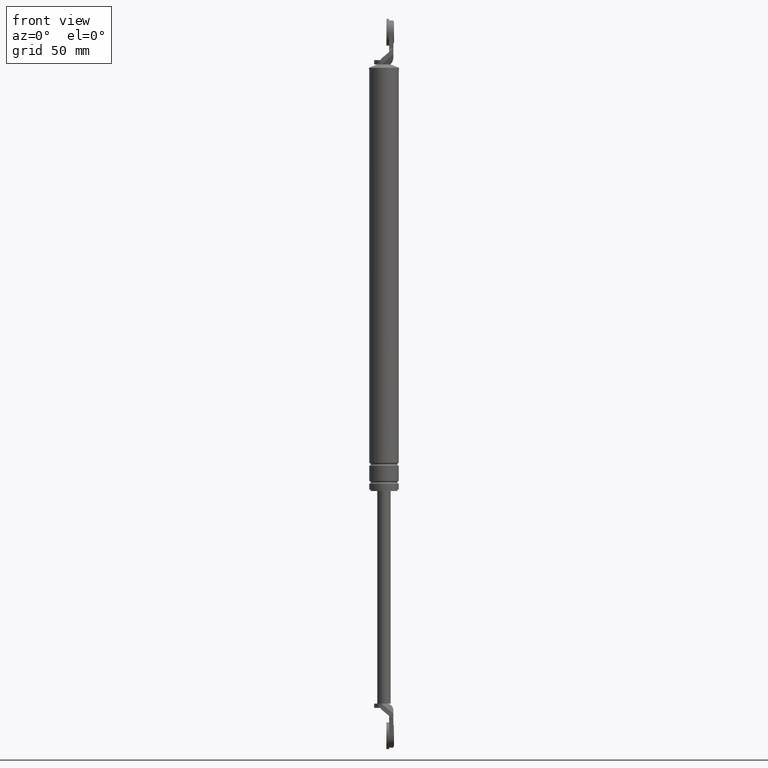
[diagram: clean part render]
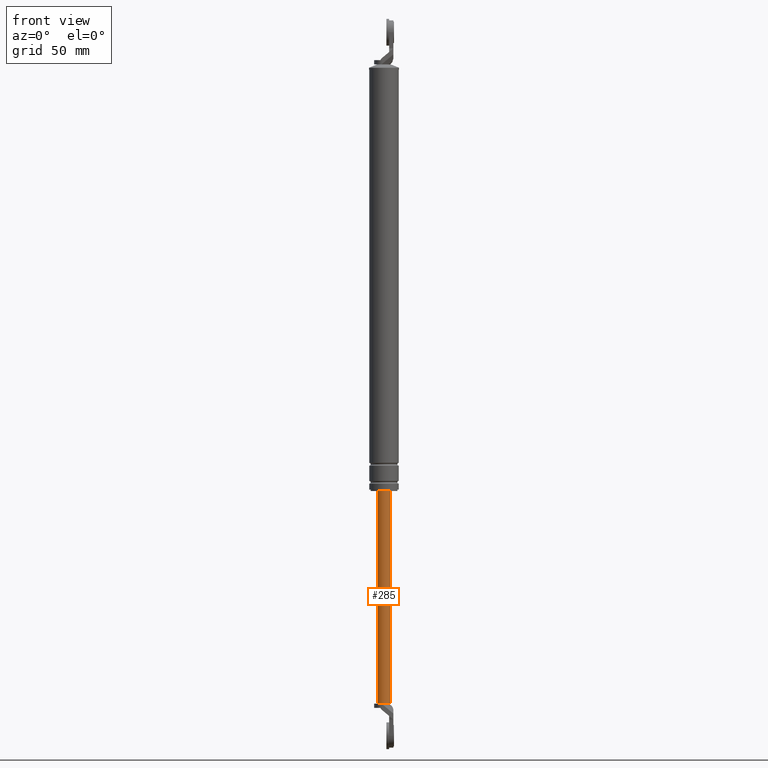
[diagram: same view with one face highlighted and labeled with its STEP entity id]
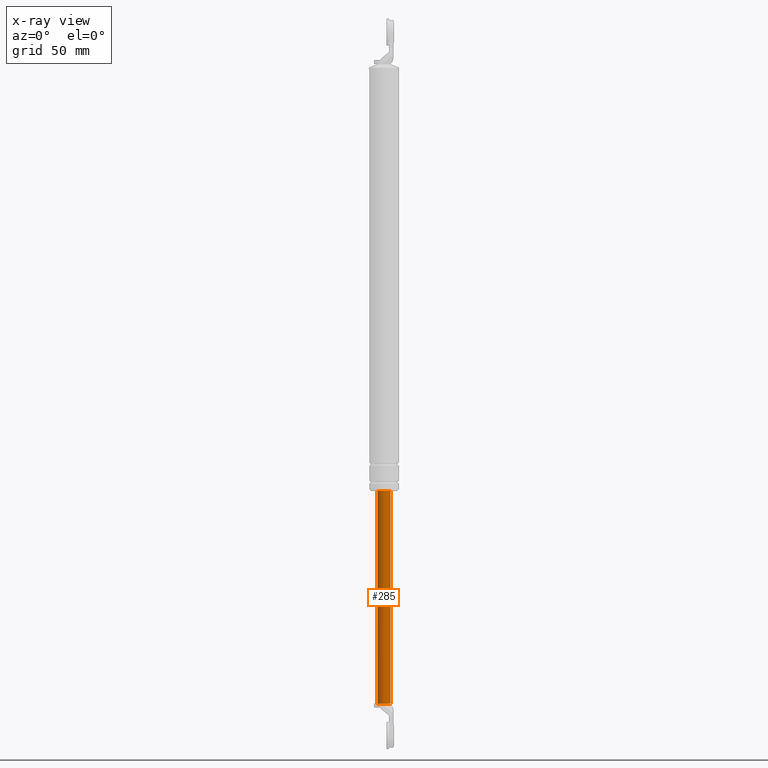
[diagram: x-ray of the same camera — body ghosted, the highlighted face saturated]
A machine part, front view. The second image highlights one B-rep face of the part: STEP entity #285.
The next image is the same camera in x-ray: the body ghosted, the highlighted face saturated — about 0% of this face is hidden behind the body in this view.
In plain terms, the highlighted cylindrical surface (edge-blend (fillet) strip) has radius 5 mm, axis along (0, 0, 1).
Its self-contained STEP definition (entity closure, byte-faithful):
#285=ADVANCED_FACE('',(#1107),#1106,.T.);
#1106=CYLINDRICAL_SURFACE('',#1760,5.00000000000E+000);
#1107=FACE_OUTER_BOUND('',#1761,.T.);
#1757=CARTESIAN_POINT('',(0.00000000000E+000,3.58204186421E-014,0.00000000000E+000));
#1758=DIRECTION('',(-0.00000000000E+000,-0.00000000000E+000,1.00000000000E+000));
#1759=DIRECTION('',(1.00000000000E+000,0.00000000000E+000,0.00000000000E+000));
#1760=AXIS2_PLACEMENT_3D('',#1757,#1758,#1759);
#1761=EDGE_LOOP('',(#2153,#2154,#2155,#2156,#2157));
#2153=ORIENTED_EDGE('',*,*,#2336,.T.);
#2154=ORIENTED_EDGE('',*,*,#2351,.F.);
#2155=ORIENTED_EDGE('',*,*,#2354,.T.);
#2156=ORIENTED_EDGE('',*,*,#2347,.T.);
#2157=ORIENTED_EDGE('',*,*,#2355,.F.);
#2336=EDGE_CURVE('',#3542,#3543,#3544,.T.);
#2347=EDGE_CURVE('',#3613,#3614,#3615,.T.);
#2351=EDGE_CURVE('',#3633,#3543,#3640,.T.);
#2354=EDGE_CURVE('',#3633,#3613,#3658,.T.);
#2355=EDGE_CURVE('',#3542,#3614,#3664,.T.);
#3542=VERTEX_POINT('',#4391);
#3543=VERTEX_POINT('',#4392);
#3544=CIRCLE('',#4396,5.00000000000E+000);
#3613=VERTEX_POINT('',#4436);
#3614=VERTEX_POINT('',#4437);
#3615=CIRCLE('',#4441,5.00000000000E+000);
#3633=VERTEX_POINT('',#4449);
#3640=CIRCLE('',#4457,5.00000000000E+000);
#3658=(BOUNDED_CURVE() B_SPLINE_CURVE(1,(#4462,#4463),.UNSPECIFIED.,.F.,.F.) B_SPLINE_CURVE_WITH_KNOTS((2,2),(5.58659216388E-002,9.44134078355E-001),.UNSPECIFIED.) CURVE() GEOMETRIC_REPRESENTATION_ITEM() RATIONAL_B_SPLINE_CURVE((1.00000000000E+000,1.00000000000E+000)) REPRESENTATION_ITEM('') );
#3664=(BOUNDED_CURVE() B_SPLINE_CURVE(1,(#4464,#4465),.UNSPECIFIED.,.F.,.F.) B_SPLINE_CURVE_WITH_KNOTS((2,2),(5.58659217877E-002,9.44134078212E-001),.UNSPECIFIED.) CURVE() GEOMETRIC_REPRESENTATION_ITEM() RATIONAL_B_SPLINE_CURVE((7.50000000000E-001,7.50000000000E-001)) REPRESENTATION_ITEM('') );
#4391=CARTESIAN_POINT('',(-5.00000000000E+000,-4.03108028563E-008,-3.89000015000E+002));
#4392=CARTESIAN_POINT('',(2.00000000000E+000,-4.58257569496E+000,-3.89000015000E+002));
#4393=CARTESIAN_POINT('',(0.00000000000E+000,3.58204186421E-014,-3.89000015000E+002));
#4394=DIRECTION('',(0.00000000000E+000,-0.00000000000E+000,1.00000000000E+000));
#4395=DIRECTION('',(1.00000000000E+000,-0.00000000000E+000,-0.00000000000E+000));
#4396=AXIS2_PLACEMENT_3D('',#4393,#4394,#4395);
#4436=CARTESIAN_POINT('',(5.00000000000E+000,3.58231962612E-014,-2.30000015000E+002));
#4437=CARTESIAN_POINT('',(-5.00000000000E+000,3.58204186421E-014,-2.30000015000E+002));
#4438=CARTESIAN_POINT('',(0.00000000000E+000,3.58204186421E-014,-2.30000015000E+002));
#4439=DIRECTION('',(-0.00000000000E+000,0.00000000000E+000,-1.00000000000E+000));
#4440=DIRECTION('',(-1.00000000000E+000,-1.22460635382E-016,0.00000000000E+000));
#4441=AXIS2_PLACEMENT_3D('',#4438,#4439,#4440);
#4449=CARTESIAN_POINT('',(5.00000000000E+000,1.01515834226E-011,-3.89000015000E+002));
#4454=CARTESIAN_POINT('',(0.00000000000E+000,3.58204186421E-014,-3.89000015000E+002));
#4455=DIRECTION('',(0.00000000000E+000,0.00000000000E+000,-1.00000000000E+000));
#4456=DIRECTION('',(4.00000000000E-001,9.16515138991E-001,0.00000000000E+000));
#4457=AXIS2_PLACEMENT_3D('',#4454,#4455,#4456);
#4462=CARTESIAN_POINT('',(5.00000000000E+000,3.58204186421E-014,-3.89000015027E+002));
#4463=CARTESIAN_POINT('',(5.00000000000E+000,3.58204186421E-014,-2.30000014975E+002));
#4464=CARTESIAN_POINT('',(-5.00000000000E+000,3.55271367880E-014,-3.89000015000E+002));
#4465=CARTESIAN_POINT('',(-5.00000000000E+000,3.55271367880E-014,-2.30000015000E+002));